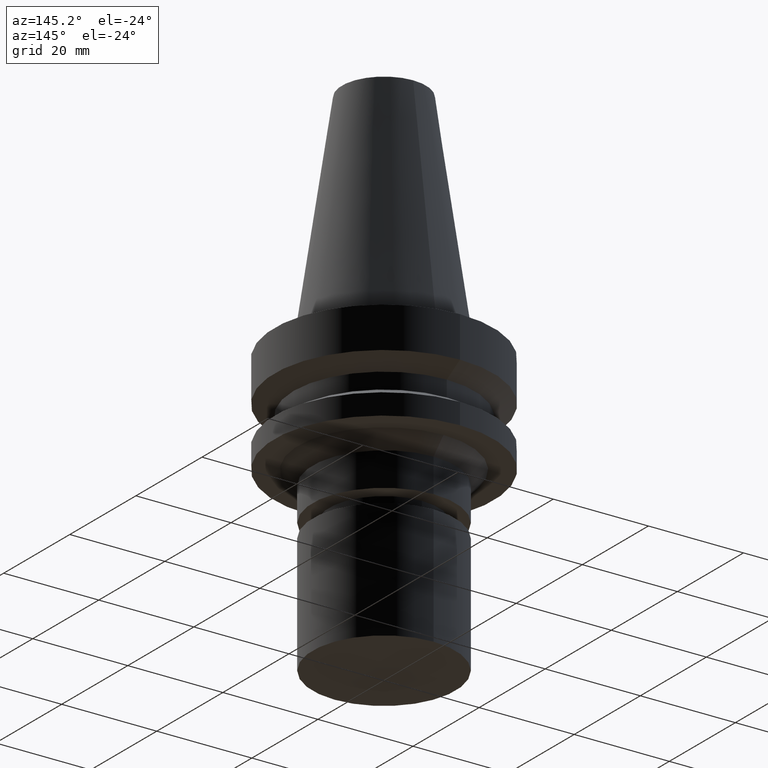
[diagram: clean part render]
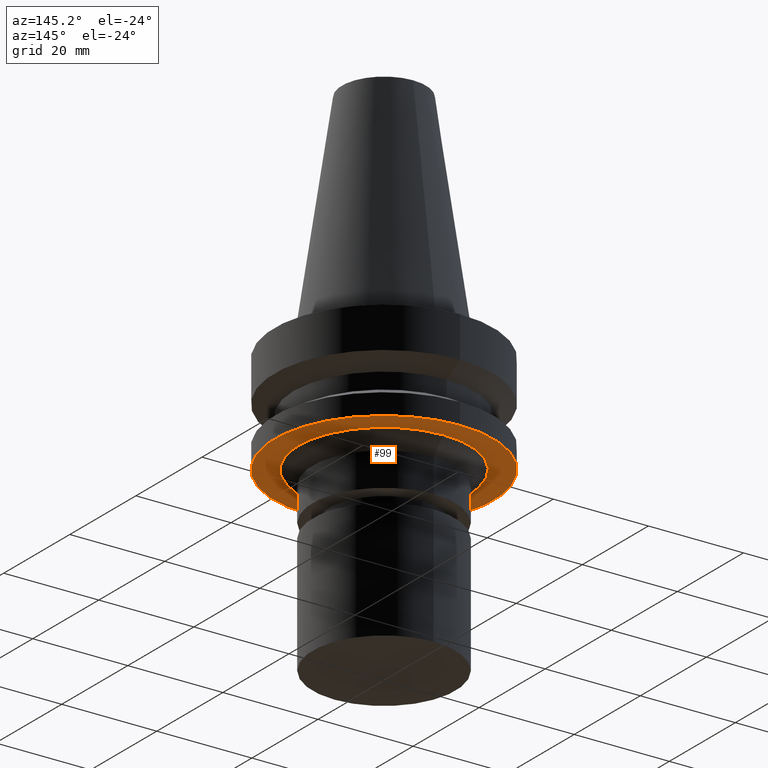
[diagram: same view with one face highlighted and labeled with its STEP entity id]
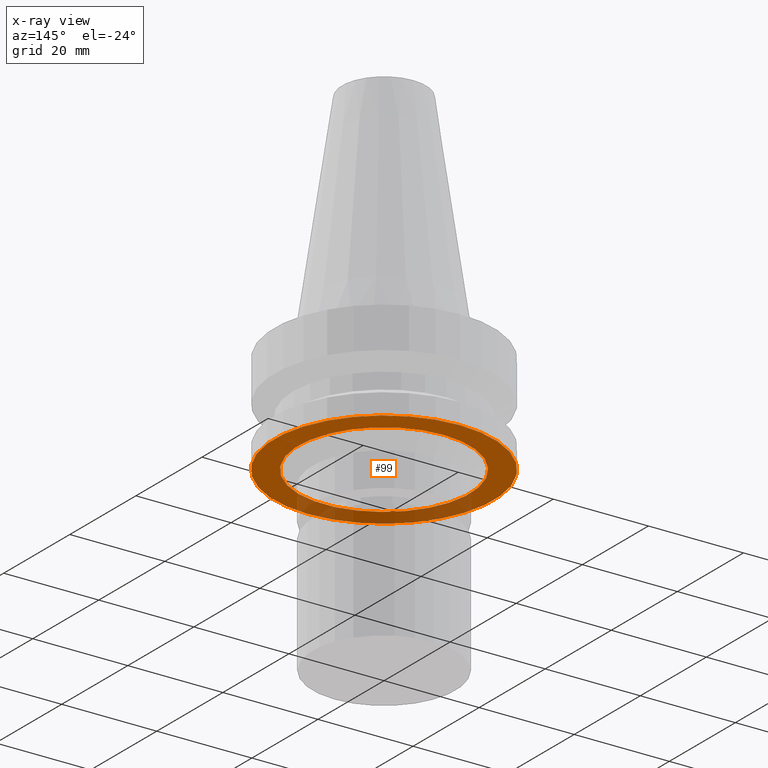
[diagram: x-ray of the same camera — body ghosted, the highlighted face saturated]
A machine part, auxiliary view. The second image highlights one B-rep face of the part: STEP entity #99.
The next image is the same camera in x-ray: the body ghosted, the highlighted face saturated — about 26% of this face is hidden behind the body in this view.
In plain terms, the highlighted planar face has unit normal (0, 0, -1).
Its self-contained STEP definition (entity closure, byte-faithful):
#99=ADVANCED_FACE('Unnamed[1]',(#235,#236),#237,.T.);
#144=EDGE_CURVE('Unnamed[1]',#304,#304,#305,.T.);
#161=EDGE_CURVE('Unnamed[1]',#332,#332,#333,.T.);
#235=FACE_BOUND('',#420,.T.);
#236=FACE_OUTER_BOUND('',#421,.T.);
#237=PLANE('',#422);
#304=VERTEX_POINT('',#505);
#305=CIRCLE('',#506,18.0000000000002);
#332=VERTEX_POINT('',#539);
#333=CIRCLE('',#540,23.0);
#420=EDGE_LOOP('',(#614));
#421=EDGE_LOOP('',(#615));
#422=AXIS2_PLACEMENT_3D('',#616,#617,#618);
#505=CARTESIAN_POINT('',(1.34711147906209E-015,18.0000000000002,-22.0));
#506=AXIS2_PLACEMENT_3D('',#692,#693,#694);
#539=CARTESIAN_POINT('',(1.34711147906209E-015,23.0,-22.0));
#540=AXIS2_PLACEMENT_3D('',#725,#726,#727);
#614=ORIENTED_EDGE('',*,*,#144,.F.);
#615=ORIENTED_EDGE('',*,*,#161,.T.);
#616=CARTESIAN_POINT('',(1.34711147906209E-015,20.5000000000001,-22.0));
#617=DIRECTION('',(6.12323399573677E-017,1.22464679914735E-016,-1.0));
#618=DIRECTION('',(-1.23259516440783E-032,1.0,1.22464679914735E-016));
#692=CARTESIAN_POINT('',(1.34711147906209E-015,2.69422295812418E-015,-22.0));
#693=DIRECTION('',(6.12323399573677E-017,1.22464679914735E-016,-1.0));
#694=DIRECTION('',(-1.23259516440783E-032,1.0,1.22464679914735E-016));
#725=CARTESIAN_POINT('',(1.34711147906209E-015,2.69422295812418E-015,-22.0));
#726=DIRECTION('',(6.12323399573677E-017,1.22464679914735E-016,-1.0));
#727=DIRECTION('',(-1.23259516440783E-032,1.0,1.22464679914735E-016));